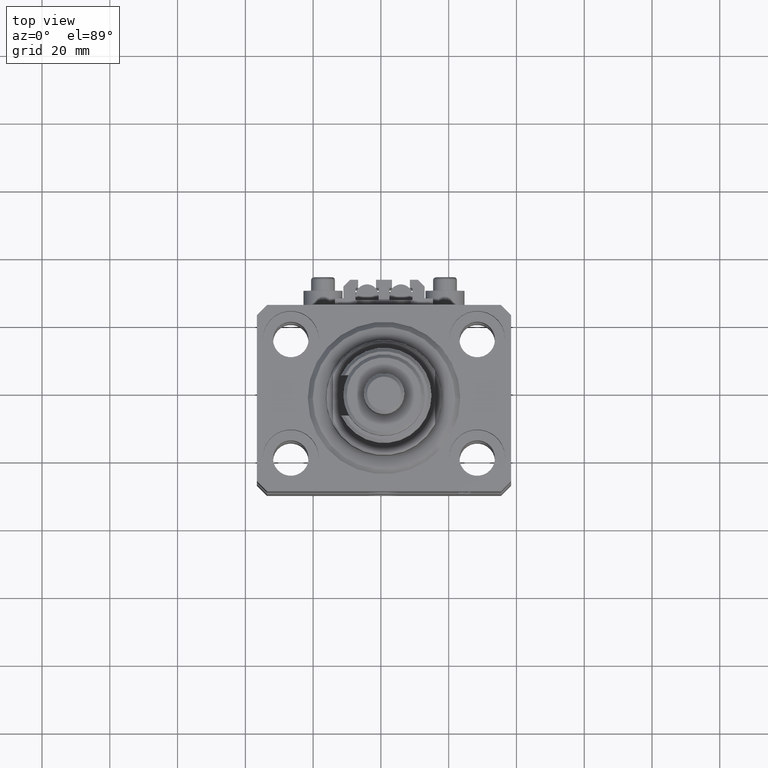
[diagram: clean part render]
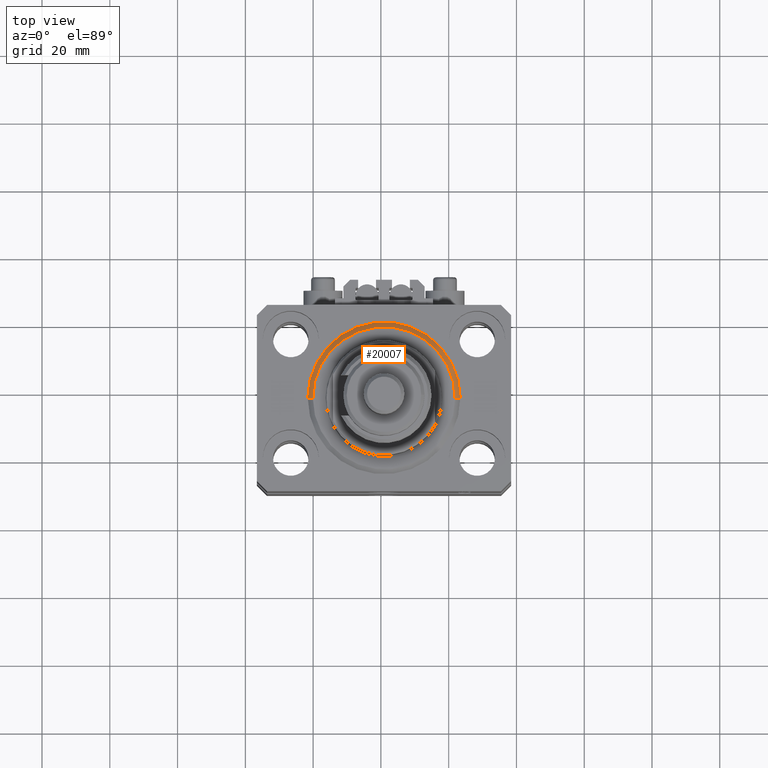
[diagram: same view with one face highlighted and labeled with its STEP entity id]
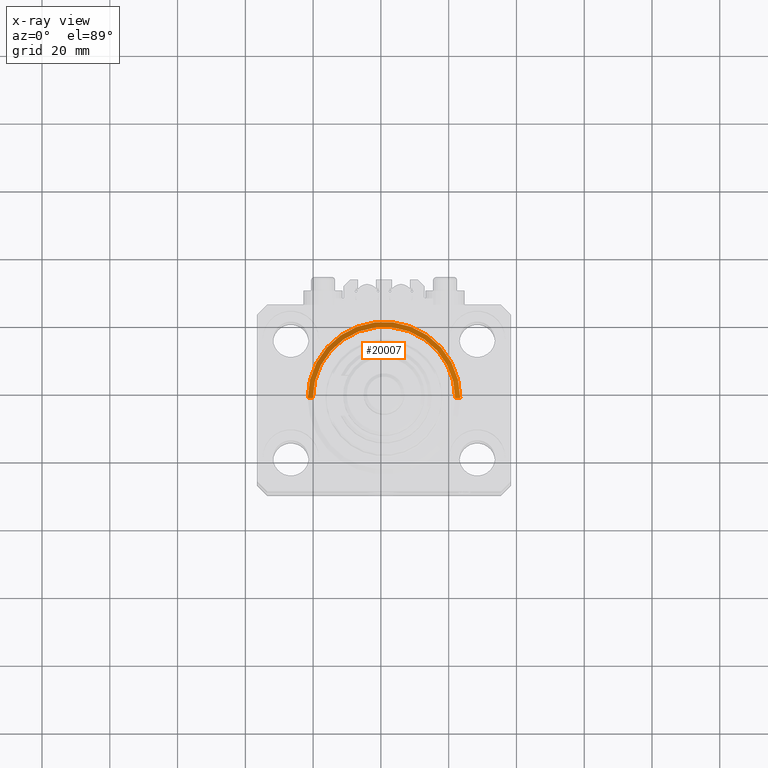
[diagram: x-ray of the same camera — body ghosted, the highlighted face saturated]
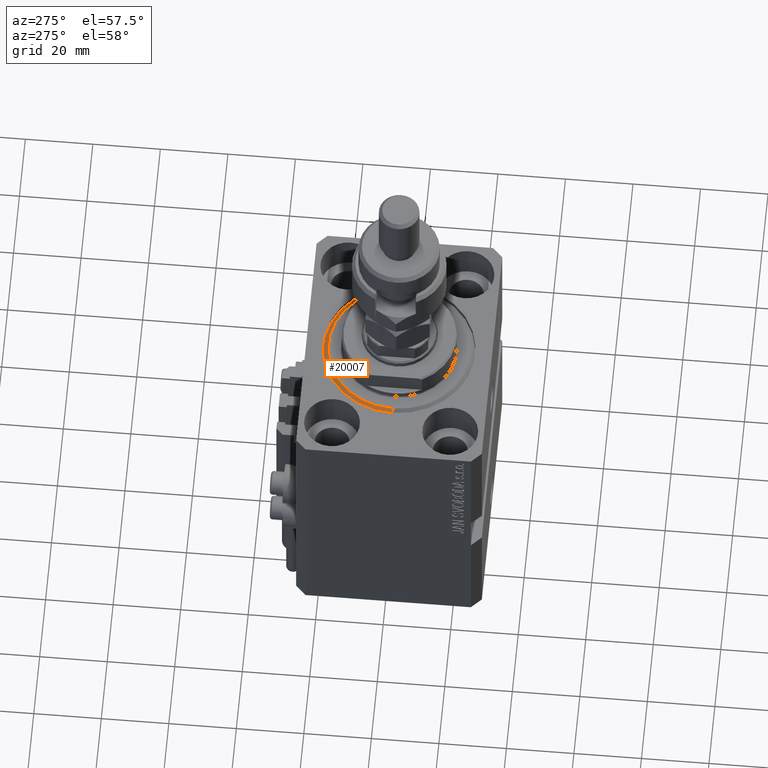
[diagram: same view with one face highlighted and labeled with its STEP entity id]
A machine part, top view. The second image highlights one B-rep face of the part: STEP entity #20007.
The next image is the same camera in x-ray: the body ghosted, the highlighted face saturated — about 0% of this face is hidden behind the body in this view.
A second angle (auxiliary view) of the same face is appended — the face is thin or edge-on in the first view.
In plain terms, the highlighted conical surface has half-angle 45 deg.
Its self-contained STEP definition (entity closure, byte-faithful):
#292 = DIRECTION ( 'NONE',  ( -0.000000000000000000, -0.000000000000000000, -1.000000000000000000 ) ) ;
#579 = CARTESIAN_POINT ( 'NONE',  ( 20.99999999999998934, 0.000000000000000000, 0.000000000000000000 ) ) ;
#745 = AXIS2_PLACEMENT_3D ( 'NONE', #25097, #29431, #20779 ) ;
#1282 = ORIENTED_EDGE ( 'NONE', *, *, #45826, .T. ) ;
#1307 = CARTESIAN_POINT ( 'NONE',  ( 0.000000000000000000, 0.000000000000000000, 1.500000000000001332 ) ) ;
#2476 = ORIENTED_EDGE ( 'NONE', *, *, #43474, .F. ) ;
#2507 = CARTESIAN_POINT ( 'NONE',  ( 22.50000000000000355, 2.755455298081545172E-15, 1.500000000000001332 ) ) ;
#2674 = LINE ( 'NONE', #45270, #42975 ) ;
#4838 = CONICAL_SURFACE ( 'NONE', #745, 22.50000000000000355, 0.7853981633974517207 ) ;
#9036 = FACE_OUTER_BOUND ( 'NONE', #47121, .T. ) ;
#10302 = DIRECTION ( 'NONE',  ( -0.7071067811865500152, 8.659560562354963673E-17, 0.7071067811865451302 ) ) ;
#10643 = CARTESIAN_POINT ( 'NONE',  ( -20.99999999999998934, 2.663606788145492628E-15, 0.000000000000000000 ) ) ;
#16432 = LINE ( 'NONE', #47565, #45775 ) ;
#16598 = EDGE_CURVE ( 'NONE', #34872, #33901, #48807, .T. ) ;
#17562 = CARTESIAN_POINT ( 'NONE',  ( -22.50000000000000355, 0.000000000000000000, 1.500000000000001332 ) ) ;
#20007 = ADVANCED_FACE ( 'NONE', ( #9036 ), #4838, .T. ) ;
#20779 = DIRECTION ( 'NONE',  ( 1.000000000000000000, 0.000000000000000000, 0.000000000000000000 ) ) ;
#23275 = CARTESIAN_POINT ( 'NONE',  ( 0.000000000000000000, 0.000000000000000000, 0.000000000000000000 ) ) ;
#25050 = EDGE_CURVE ( 'NONE', #30092, #34872, #16432, .T. ) ;
#25097 = CARTESIAN_POINT ( 'NONE',  ( 0.000000000000000000, 0.000000000000000000, 1.500000000000001332 ) ) ;
#29002 = ORIENTED_EDGE ( 'NONE', *, *, #25050, .F. ) ;
#29431 = DIRECTION ( 'NONE',  ( -0.000000000000000000, -0.000000000000000000, 1.000000000000000000 ) ) ;
#30092 = VERTEX_POINT ( 'NONE', #579 ) ;
#33356 = VERTEX_POINT ( 'NONE', #10643 ) ;
#33901 = VERTEX_POINT ( 'NONE', #17562 ) ;
#34872 = VERTEX_POINT ( 'NONE', #2507 ) ;
#34999 = DIRECTION ( 'NONE',  ( 1.000000000000000000, 0.000000000000000000, 0.000000000000000000 ) ) ;
#37341 = CIRCLE ( 'NONE', #43016, 20.99999999999998934 ) ;
#38219 = AXIS2_PLACEMENT_3D ( 'NONE', #1307, #44184, #40350 ) ;
#40350 = DIRECTION ( 'NONE',  ( 1.000000000000000000, 0.000000000000000000, 0.000000000000000000 ) ) ;
#42975 = VECTOR ( 'NONE', #10302, 1000.000000000000114 ) ;
#43016 = AXIS2_PLACEMENT_3D ( 'NONE', #23275, #292, #34999 ) ;
#43474 = EDGE_CURVE ( 'NONE', #33356, #30092, #37341, .T. ) ;
#44184 = DIRECTION ( 'NONE',  ( -0.000000000000000000, -0.000000000000000000, 1.000000000000000000 ) ) ;
#45270 = CARTESIAN_POINT ( 'NONE',  ( -22.50000000000000355, 2.755455298081545172E-15, 1.500000000000001332 ) ) ;
#45775 = VECTOR ( 'NONE', #47311, 1000.000000000000114 ) ;
#45826 = EDGE_CURVE ( 'NONE', #33356, #33901, #2674, .T. ) ;
#47121 = EDGE_LOOP ( 'NONE', ( #2476, #1282, #50126, #29002 ) ) ;
#47311 = DIRECTION ( 'NONE',  ( 0.7071067811865500152, 0.000000000000000000, 0.7071067811865451302 ) ) ;
#47565 = CARTESIAN_POINT ( 'NONE',  ( 22.50000000000000355, 0.000000000000000000, 1.500000000000001332 ) ) ;
#48807 = CIRCLE ( 'NONE', #38219, 22.50000000000000355 ) ;
#50126 = ORIENTED_EDGE ( 'NONE', *, *, #16598, .F. ) ;